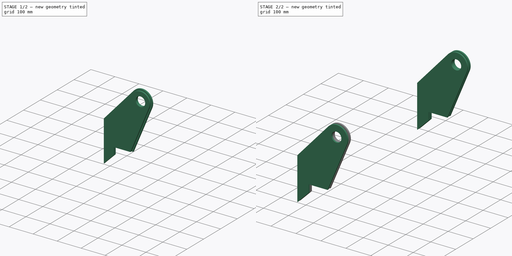
[diagram: build sequence overview — one tinted view per stage of 2, left to right]
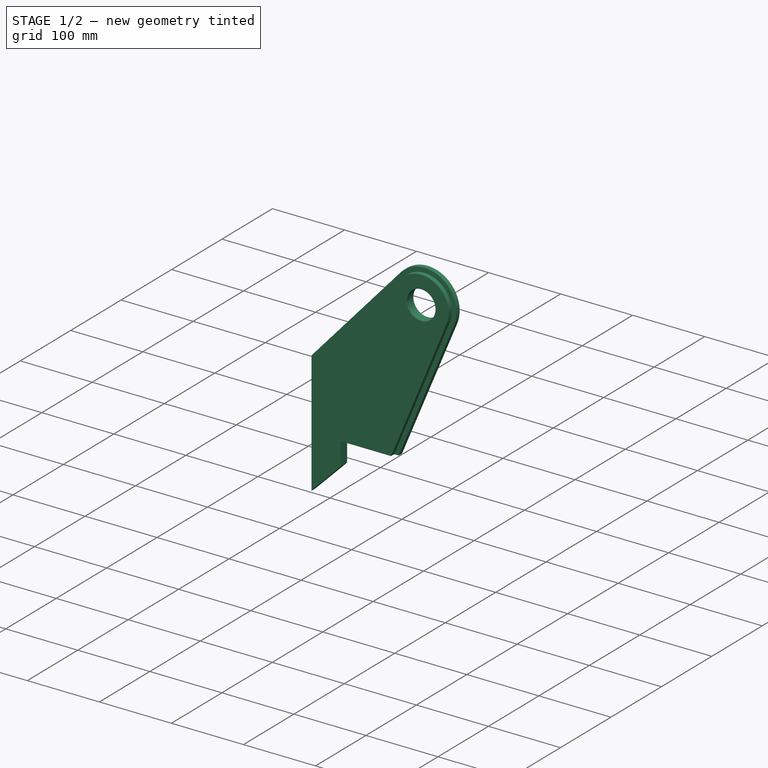
[diagram: stage 1 of 2 — iso view after this stage's code; geometry added in this stage tinted green]
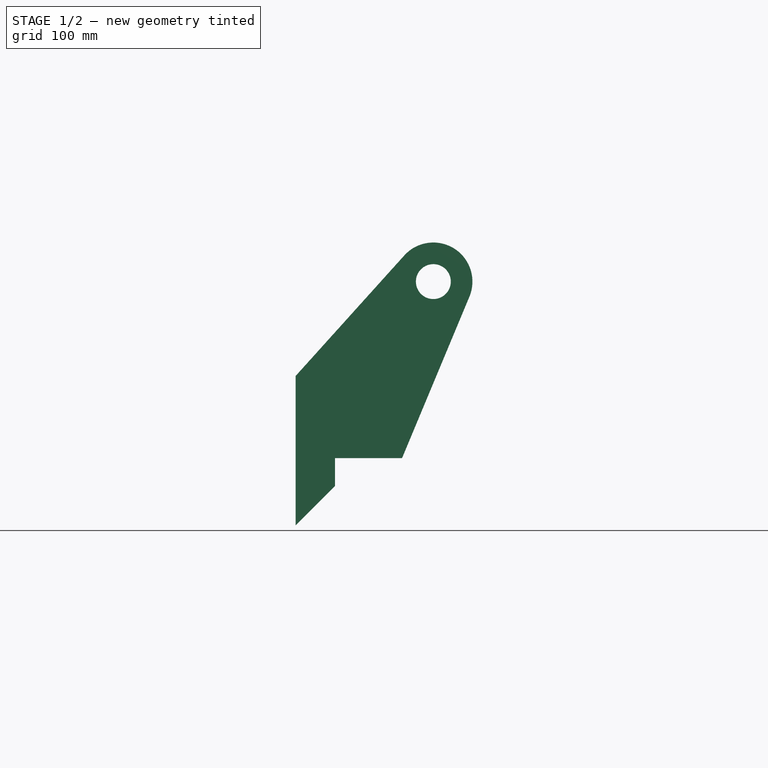
[diagram: stage 1 of 2 — front view after this stage's code; geometry added in this stage tinted green]
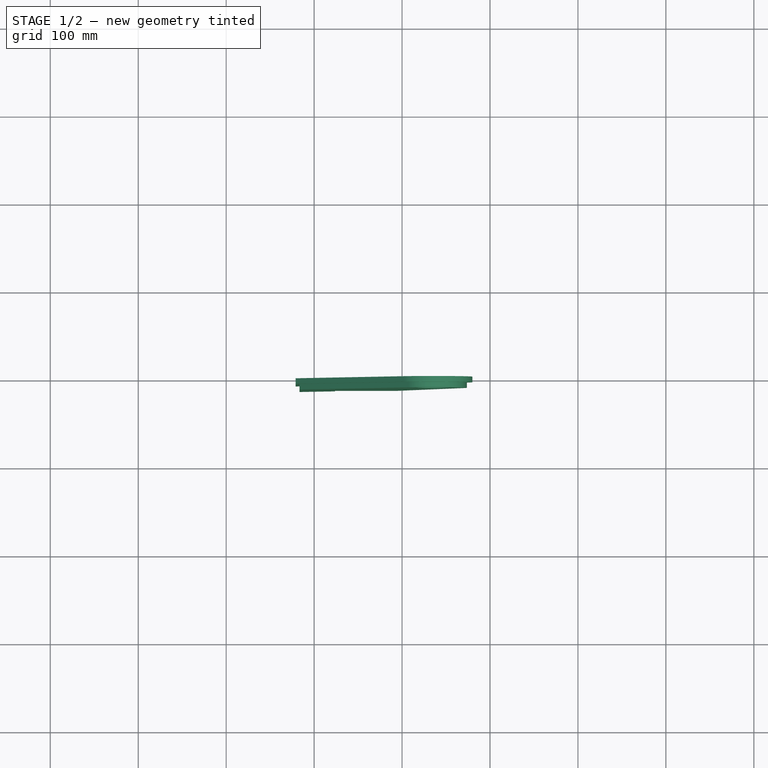
[diagram: stage 1 of 2 — top view after this stage's code; geometry added in this stage tinted green]
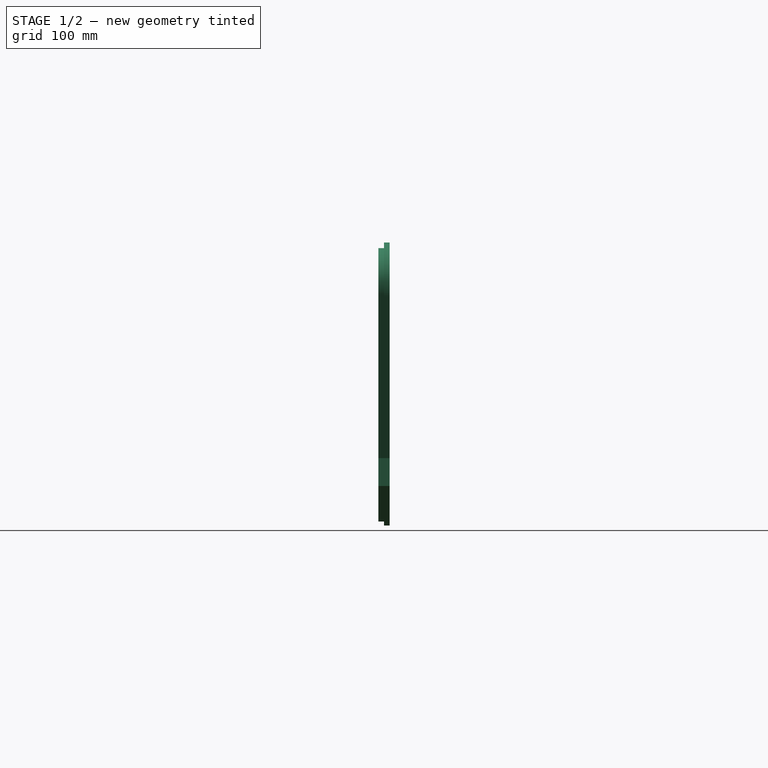
[diagram: stage 1 of 2 — right view after this stage's code; geometry added in this stage tinted green]
FCSTD DOCUMENT  (FreeCAD 0.17R13522 (Git))
Label: Mount_Cylinder_base
License: CreativeCommons Attribution
LicenseURL: http://creativecommons.org/licenses/by/4.0/
objects: Sketcher::SketchObject×2, PartDesign::Pad×2, PartDesign::Plane×1, PartDesign::LinearPattern×1, PartDesign::Body×1, Part::FeaturePython×1, Part::Feature×1
note: 11 computed .brp shape members not serialized (recipe doc carries the construction recipe); baked Part::Feature solids carry a one-line shape summary decoded from their .brp

FEATURE [Sketcher::SketchObject] Sketch  label="Cylinder Base Mount sketch"
  MapMode = 5
  Placement = pos=(0,0,0) rot=(1,0,0;1.5708rad)
  sketch-geometry (8):
    g0: LineSegment StartX=-76.2 StartY=-31.75 StartZ=0 EndX=-76.2 EndY=0 EndZ=0
    g1: LineSegment StartX=-76.2 StartY=0 StartZ=0 EndX=0 EndY=0 EndZ=0
    g2: ArcOfCircle CenterX=35.56 CenterY=200.66 CenterZ=0 NormalX=0 NormalY=0 NormalZ=1 AngleXU=0 Radius=44.45 StartAngle=5.8879 EndAngle=8.69111
    g3: LineSegment StartX=2.54588 StartY=230.424 StartZ=0 EndX=-121.101 EndY=93.2727 EndZ=0
    g4: LineSegment StartX=-121.101 StartY=-76.6513 StartZ=0 EndX=-76.2 EndY=-31.75 EndZ=0
    g5: Circle CenterX=35.56 CenterY=200.66 CenterZ=0 NormalX=0 NormalY=0 NormalZ=1 AngleXU=0 Radius=19.8438
    g6: LineSegment StartX=-121.101 StartY=-76.6513 StartZ=0 EndX=-121.101 EndY=93.2727 EndZ=0
    g7: LineSegment StartX=0 StartY=0 StartZ=0 EndX=76.5824 EndY=183.544 EndZ=0
  constraints (22):
    c: Vertical(g0)
    c: Coincident(g0,g1)
    c: Coincident(g4,g0)
    c: Horizontal(g1)
    c: DistanceX(g1,g1) = 76.2
    c: Angle(g0,g4) = 2.35619
    c: Distance(g4) = 63.5
    c: Coincident(g-1,g1)
    c: Coincident(g5,g2)
    c: Radius(g5) = 19.8438
    c: DistanceY(g2) = 200.66
    c: Tangent(g3,g2) = -1.5708
    c: Radius(g2) = 44.45
    c: Coincident(g6,g4)
    c: Coincident(g6,g3)
    c: Vertical(g6)
    c: Coincident(g7,g-1)
    c: Coincident(g7,g2)
    c: Tangent(g7,g2,g2) = -1.5708
    c: DistanceX(g-1,g2) = 35.56
    c: DistanceY(g0,g0) = 31.75
    c: Distance(g-1,g3) = 152.4
FEATURE [PartDesign::Pad] Pad  label="Plate Outer #1"
  Length = 6.35
  Length2 = 100.076
  Placement = pos=(0,0,0) rot=(1,0,0;1.5708rad)
  Profile = -> Sketch
  Type = 0
FEATURE [PartDesign::Plane] DatumPlane
  MapMode = 5
  Placement = pos=(0,-6.35,0) rot=(1,0,0;1.5708rad)
  Support = -> [Pad]
FEATURE [Sketcher::SketchObject] Sketch001  label="Cylinder Base Mount narrow"
  MapMode = 5
  Placement = pos=(0,-6.35,0) rot=(1,0,0;1.5708rad)
  Support = -> [DatumPlane]
  sketch-geometry (8):
    g0: LineSegment StartX=-76.2 StartY=-31.75 StartZ=0 EndX=-76.2 EndY=0 EndZ=0
    g1: LineSegment StartX=-76.2 StartY=0 StartZ=0 EndX=-6.35 EndY=0 EndZ=0
    g2: ArcOfCircle CenterX=35.56 CenterY=200.66 CenterZ=0 NormalX=0 NormalY=0 NormalZ=1 AngleXU=0 Radius=38.1 StartAngle=5.89033 EndAngle=8.69111
    g3: LineSegment StartX=7.26219 StartY=226.172 StartZ=0 EndX=-116.611 EndY=88.7698 EndZ=0
    g4: LineSegment StartX=-116.611 StartY=-72.1612 StartZ=0 EndX=-76.2 EndY=-31.75 EndZ=0
    g5: Circle CenterX=35.56 CenterY=200.66 CenterZ=0 NormalX=0 NormalY=0 NormalZ=1 AngleXU=0 Radius=19.8438
    g6: LineSegment StartX=-116.611 StartY=-72.1612 StartZ=0 EndX=-116.611 EndY=88.7698 EndZ=0
    g7: LineSegment StartX=-6.35 StartY=0 StartZ=0 EndX=70.7576 EndY=186.074 EndZ=0
  constraints (23):
    c: Vertical(g0)
    c: Coincident(g0,g1)
    c: Coincident(g4,g0)
    c: Horizontal(g1)
    c: DistanceX(g1,g1) = 69.85
    c: Angle(g0,g4) = 2.35619
    c: Distance(g4) = 57.15
    c: Coincident(g5,g2)
    c: Radius(g5) = 19.8438
    c: DistanceY(g2) = 200.66
    c: Tangent(g3,g2) = -1.5708
    c: Radius(g2) = 38.1
    c: Coincident(g6,g4)
    c: Coincident(g6,g3)
    c: Vertical(g6)
    c: Coincident(g7,g2)
    c: Tangent(g7,g2,g2) = -1.5708
    c: DistanceX(g-1,g2) = 35.56
    c: DistanceY(g0,g0) = 31.75
    c: Distance(g-1,g3) = 146.05
    c: Coincident(g1,g7)
    c: PointOnObject(g1,g-1)
    c: DistanceX(g1,g-1) = 6.35
FEATURE [PartDesign::Pad] Pad001  label="Plate Inner"
  BaseFeature = -> Pad
  Length = 6.35
  Length2 = 100.076
  Placement = pos=(0,0,0) rot=(1,0,0;1.5708rad)
  Profile = -> Sketch001
  Type = 0
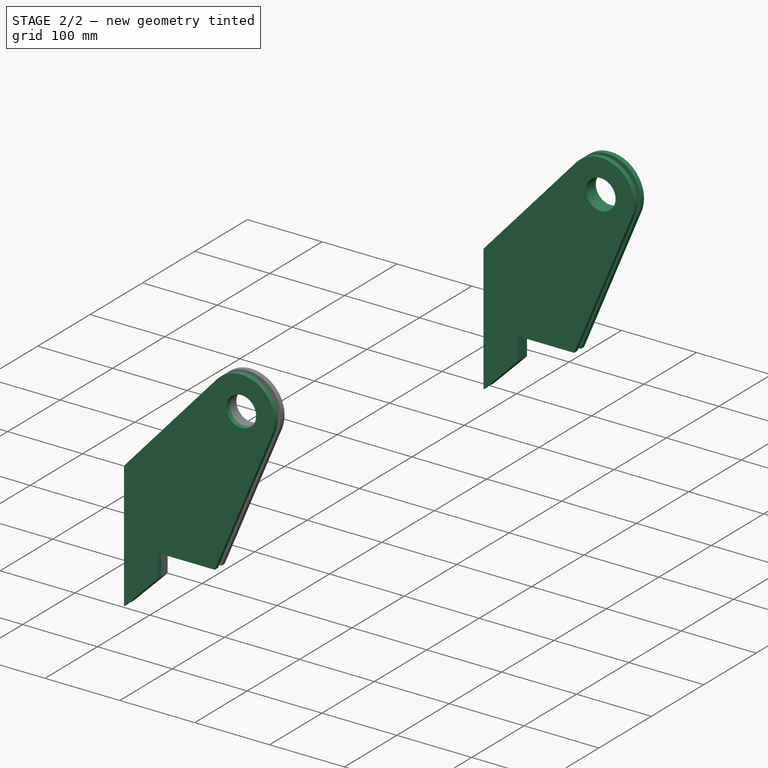
[diagram: stage 2 of 2 — iso view after this stage's code; geometry added in this stage tinted green]
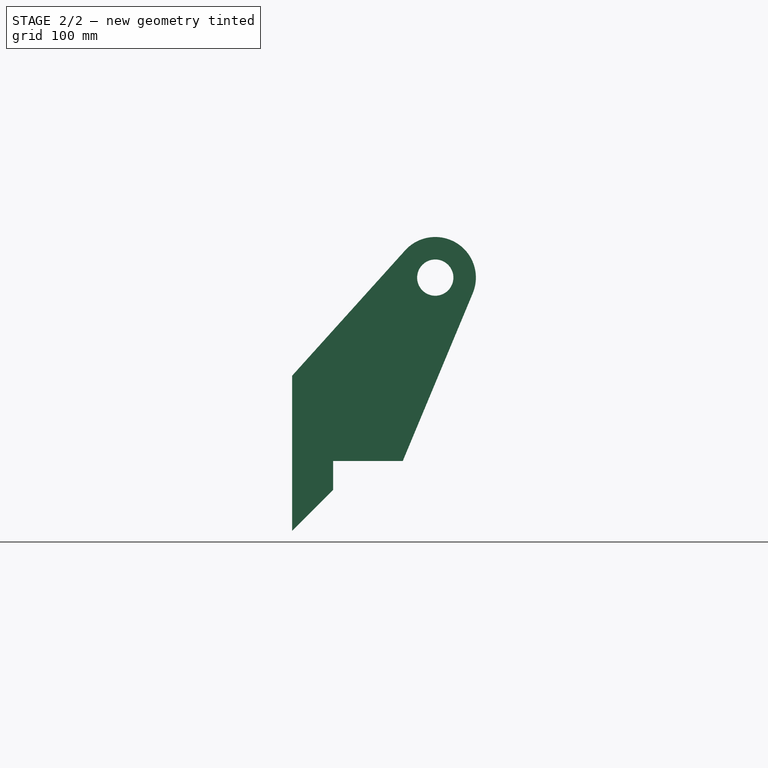
[diagram: stage 2 of 2 — front view after this stage's code; geometry added in this stage tinted green]
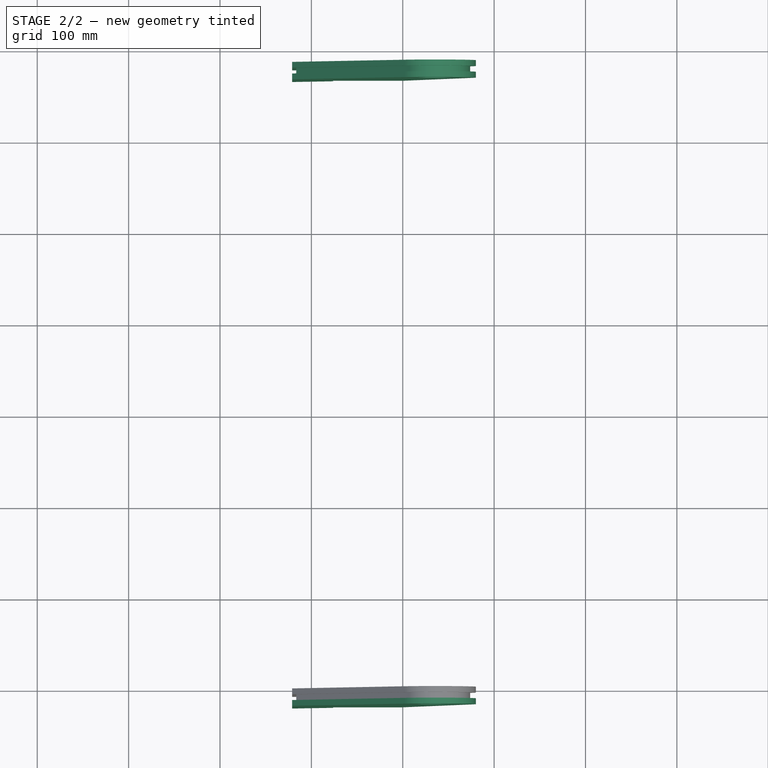
[diagram: stage 2 of 2 — top view after this stage's code; geometry added in this stage tinted green]
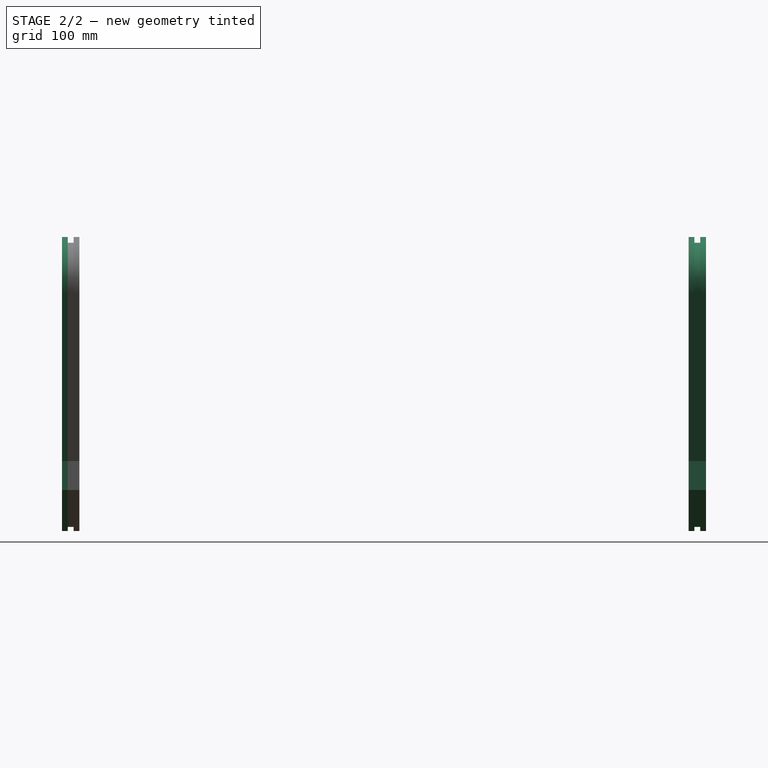
[diagram: stage 2 of 2 — right view after this stage's code; geometry added in this stage tinted green]
FEATURE [PartDesign::LinearPattern] LinearPattern  label="Plate Outer #2"
  BaseFeature = -> Pad001
  Direction = -> Y_Axis
  Length = 12.7
  Occurrences = 2
  Originals = -> [Pad]
  Placement = pos=(0,0,0) rot=(1,0,0;1.5708rad)
  Reversed = true
FEATURE [PartDesign::Body] Body
  Group = -> [Sketch,Pad,DatumPlane,Sketch001,Pad001,LinearPattern]
  Origin = -> Origin
  Tip = -> LinearPattern
FEATURE [Part::FeaturePython] Array  # Draft array (typed FeaturePython)
  Angle = 360
  ArrayType = 0
  Axis = (0,0,1)
  Base = -> Body
  Center = (0,0,0)
  Fuse = false
  IntervalAxis = (0,0,0)
  IntervalX = (1,0,0)
  IntervalY = (0,685.8,0)
  IntervalZ = (0,0,0)
  NumberPolar = 1
  NumberX = 1
  NumberY = 2
  NumberZ = 1
FEATURE [Part::Feature] Face016  label="inner face for dxf export"
  Placement = pos=(0,-6.35,0) rot=(0,0,1;0rad)
  shape: bbox 195.4 x 2e-07 x 336.3 mm, 1 faces, 0 solids (baked)
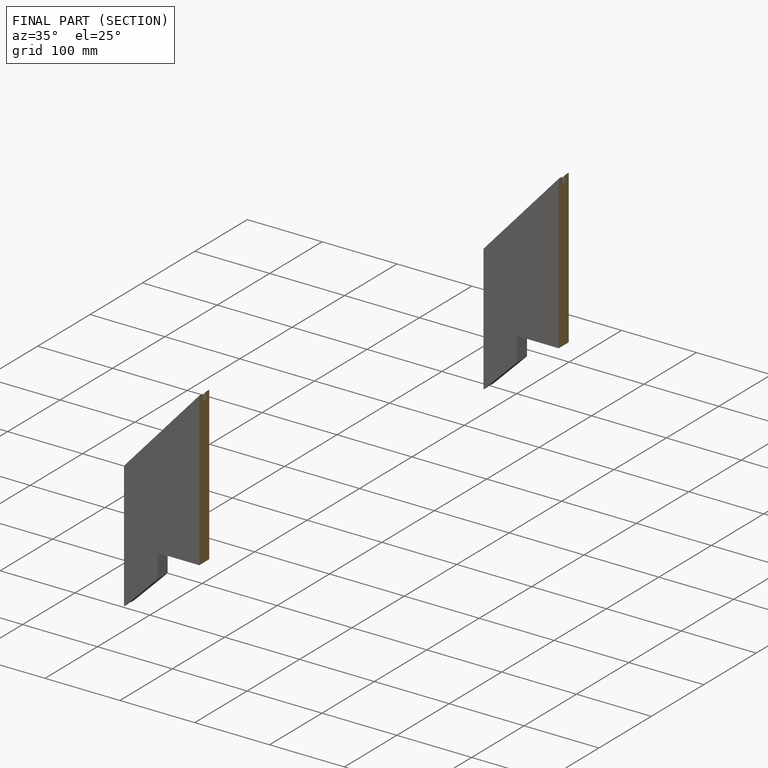
[diagram: finished part — half-section view (interior)]
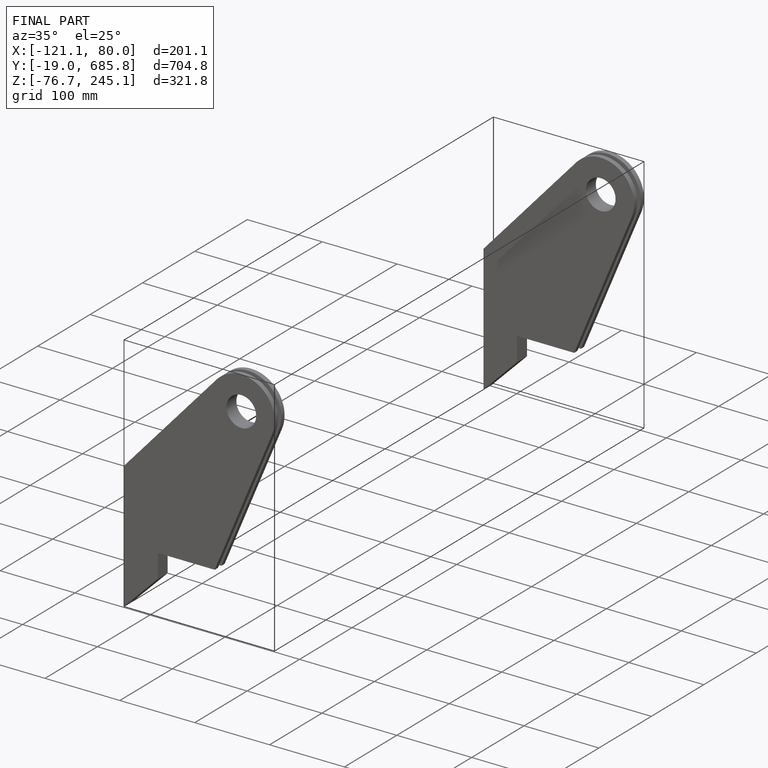
[diagram: finished part — iso view with bounding-box wireframe]
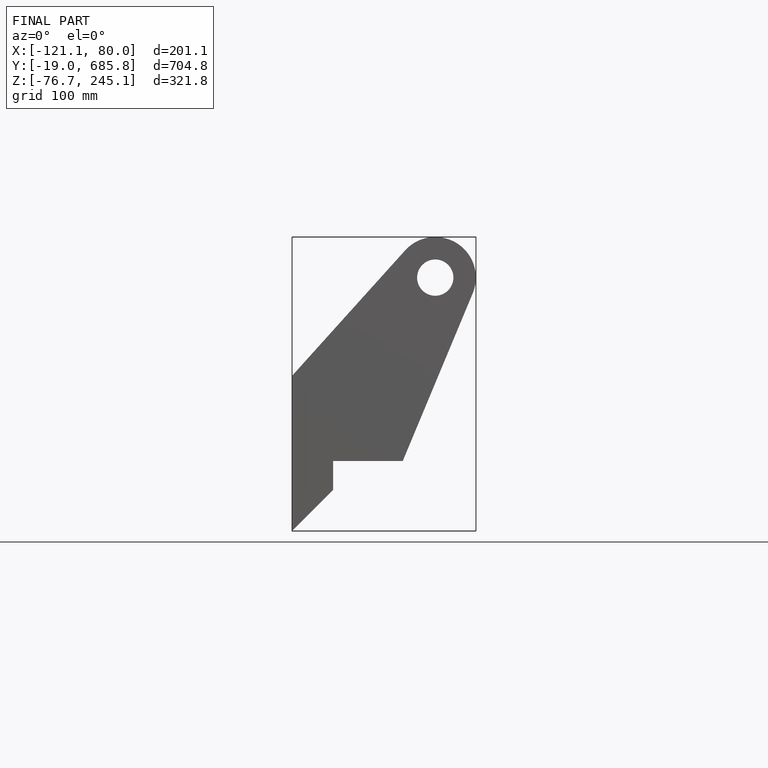
[diagram: finished part — front view with bounding-box wireframe]
